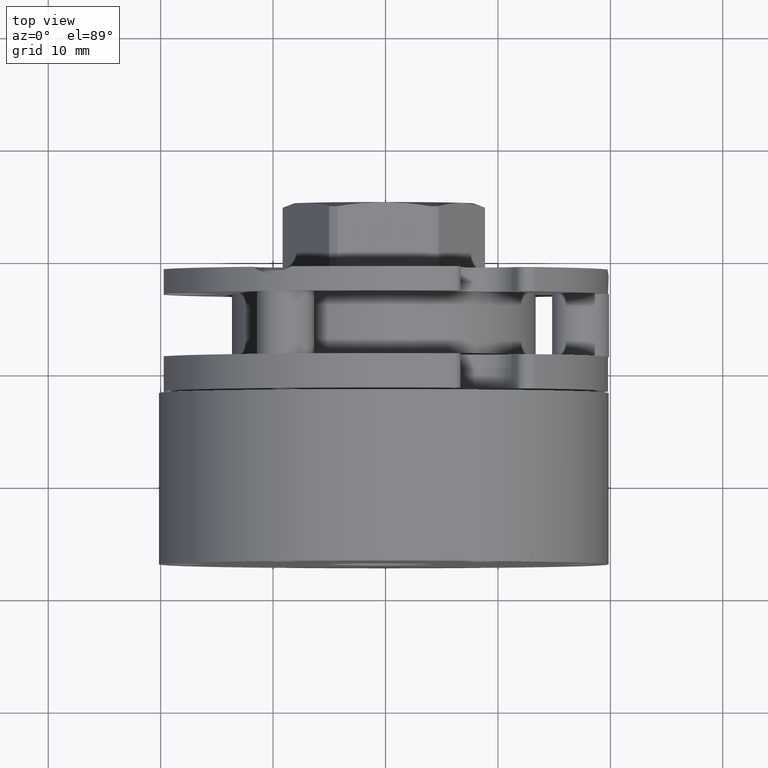
[diagram: clean part render]
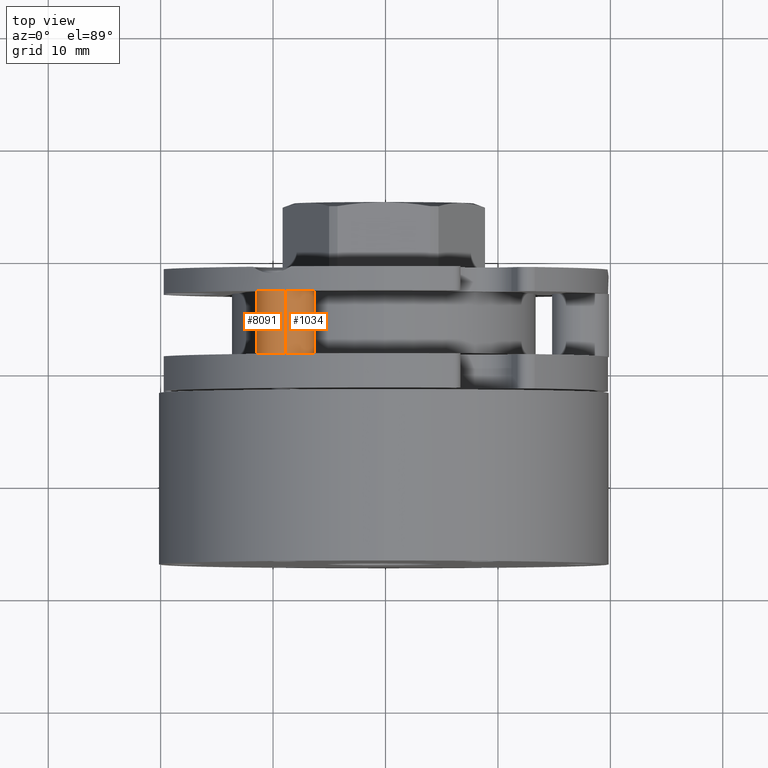
[diagram: same view with one multi-face feature highlighted, each face labeled with its STEP entity id]
A machine part, top view. The highlighted faces form ONE feature: a constant-radius fillet chain: 2 tangent blend faces with common blend radius 2.55 mm. The faces share edges in the B-rep.
Their STEP definitions:
[1] entity #1034 (Cylinder):
#133 = DIRECTION ( 'NONE',  ( -1.963197694344649898E-17, -1.000000000000000000, -6.123233995736775897E-17 ) ) ;
#170 = CARTESIAN_POINT ( 'NONE',  ( -8.898990157379978783, -63.08216099891336626, 18.00378232518351496 ) ) ;
#338 = AXIS2_PLACEMENT_3D ( 'NONE', #4889, #5484, #1870 ) ;
#381 = DIRECTION ( 'NONE',  ( -1.963197694344649898E-17, -1.000000000000000000, -6.123233995736775897E-17 ) ) ;
#670 = ORIENTED_EDGE ( 'NONE', *, *, #3724, .T. ) ;
#1011 = VECTOR ( 'NONE', #133, 1000.000000000000000 ) ;
#1034 = ADVANCED_FACE ( 'NONE', ( #8065 ), #4777, .T. ) ;
#1094 = VERTEX_POINT ( 'NONE', #8035 ) ;
#1208 = AXIS2_PLACEMENT_3D ( 'NONE', #2734, #7824, #2040 ) ;
#1434 = VERTEX_POINT ( 'NONE', #170 ) ;
#1870 = DIRECTION ( 'NONE',  ( 0.0000000000000000000, 0.0000000000000000000, -1.000000000000000000 ) ) ;
#2040 = DIRECTION ( 'NONE',  ( 0.0000000000000000000, 0.0000000000000000000, -1.000000000000000000 ) ) ;
#2273 = DIRECTION ( 'NONE',  ( -1.963197694344649898E-17, -1.000000000000000000, -6.123233995736775897E-17 ) ) ;
#2415 = EDGE_CURVE ( 'NONE', #7970, #1434, #8180, .T. ) ;
#2610 = DIRECTION ( 'NONE',  ( 0.0000000000000000000, 0.0000000000000000000, -1.000000000000000000 ) ) ;
#2734 = CARTESIAN_POINT ( 'NONE',  ( -8.898990157379978783, -68.68216099891338899, 15.45378232518351247 ) ) ;
#2799 = CARTESIAN_POINT ( 'NONE',  ( -8.898990157379978783, -68.68216099891338899, 18.00378232518351496 ) ) ;
#2912 = ORIENTED_EDGE ( 'NONE', *, *, #2415, .T. ) ;
#3724 = EDGE_CURVE ( 'NONE', #1434, #6680, #8422, .T. ) ;
#4070 = LINE ( 'NONE', #6004, #1011 ) ;
#4095 = ORIENTED_EDGE ( 'NONE', *, *, #6930, .F. ) ;
#4398 = CARTESIAN_POINT ( 'NONE',  ( -8.898990157379978783, -55.86967183081057442, 18.00378232518351496 ) ) ;
#4474 = EDGE_LOOP ( 'NONE', ( #2912, #670, #7791, #4095 ) ) ;
#4493 = CIRCLE ( 'NONE', #1208, 2.550000000000000266 ) ;
#4727 = CARTESIAN_POINT ( 'NONE',  ( -8.898990157379978783, -55.86967183081057442, 15.45378232518351247 ) ) ;
#4777 = CYLINDRICAL_SURFACE ( 'NONE', #6272, 2.550000000000000266 ) ;
#4889 = CARTESIAN_POINT ( 'NONE',  ( -8.898990157379978783, -63.08216099891336626, 15.45378232518351247 ) ) ;
#4934 = VECTOR ( 'NONE', #2273, 1000.000000000000000 ) ;
#5484 = DIRECTION ( 'NONE',  ( -1.963197694344649898E-17, -1.000000000000000000, -6.123233995736775897E-17 ) ) ;
#6004 = CARTESIAN_POINT ( 'NONE',  ( -8.898990157379978783, -55.86967183081057442, 12.90378232518351354 ) ) ;
#6272 = AXIS2_PLACEMENT_3D ( 'NONE', #4727, #381, #2610 ) ;
#6399 = CARTESIAN_POINT ( 'NONE',  ( -8.898990157379978783, -63.08216099891336626, 12.90378232518351354 ) ) ;
#6680 = VERTEX_POINT ( 'NONE', #2799 ) ;
#6930 = EDGE_CURVE ( 'NONE', #7970, #1094, #4070, .T. ) ;
#7791 = ORIENTED_EDGE ( 'NONE', *, *, #8915, .T. ) ;
#7824 = DIRECTION ( 'NONE',  ( 1.963197694344649898E-17, 1.000000000000000000, 6.123233995736775897E-17 ) ) ;
#7970 = VERTEX_POINT ( 'NONE', #6399 ) ;
#8035 = CARTESIAN_POINT ( 'NONE',  ( -8.898990157379978783, -68.68216099891338899, 12.90378232518351354 ) ) ;
#8065 = FACE_OUTER_BOUND ( 'NONE', #4474, .T. ) ;
#8180 = CIRCLE ( 'NONE', #338, 2.550000000000000266 ) ;
#8422 = LINE ( 'NONE', #4398, #4934 ) ;
#8915 = EDGE_CURVE ( 'NONE', #6680, #1094, #4493, .T. ) ;
[2] entity #8091 (Cylinder):
#133 = DIRECTION ( 'NONE',  ( -1.963197694344649898E-17, -1.000000000000000000, -6.123233995736775897E-17 ) ) ;
#170 = CARTESIAN_POINT ( 'NONE',  ( -8.898990157379978783, -63.08216099891336626, 18.00378232518351496 ) ) ;
#305 = CYLINDRICAL_SURFACE ( 'NONE', #6642, 2.550000000000000266 ) ;
#768 = CARTESIAN_POINT ( 'NONE',  ( -8.898990157379978783, -68.68216099891338899, 15.45378232518351247 ) ) ;
#878 = CARTESIAN_POINT ( 'NONE',  ( -8.898990157379978783, -55.86967183081057442, 15.45378232518351247 ) ) ;
#1011 = VECTOR ( 'NONE', #133, 1000.000000000000000 ) ;
#1094 = VERTEX_POINT ( 'NONE', #8035 ) ;
#1434 = VERTEX_POINT ( 'NONE', #170 ) ;
#2273 = DIRECTION ( 'NONE',  ( -1.963197694344649898E-17, -1.000000000000000000, -6.123233995736775897E-17 ) ) ;
#2799 = CARTESIAN_POINT ( 'NONE',  ( -8.898990157379978783, -68.68216099891338899, 18.00378232518351496 ) ) ;
#3178 = AXIS2_PLACEMENT_3D ( 'NONE', #4971, #3541, #9315 ) ;
#3333 = ORIENTED_EDGE ( 'NONE', *, *, #7339, .T. ) ;
#3541 = DIRECTION ( 'NONE',  ( -1.963197694344649898E-17, -1.000000000000000000, -6.123233995736775897E-17 ) ) ;
#3724 = EDGE_CURVE ( 'NONE', #1434, #6680, #8422, .T. ) ;
#3848 = CIRCLE ( 'NONE', #4819, 2.550000000000000266 ) ;
#4070 = LINE ( 'NONE', #6004, #1011 ) ;
#4090 = ORIENTED_EDGE ( 'NONE', *, *, #6769, .T. ) ;
#4398 = CARTESIAN_POINT ( 'NONE',  ( -8.898990157379978783, -55.86967183081057442, 18.00378232518351496 ) ) ;
#4819 = AXIS2_PLACEMENT_3D ( 'NONE', #768, #5849, #5781 ) ;
#4844 = FACE_OUTER_BOUND ( 'NONE', #6347, .T. ) ;
#4934 = VECTOR ( 'NONE', #2273, 1000.000000000000000 ) ;
#4971 = CARTESIAN_POINT ( 'NONE',  ( -8.898990157379978783, -63.08216099891336626, 15.45378232518351247 ) ) ;
#5674 = ORIENTED_EDGE ( 'NONE', *, *, #6930, .T. ) ;
#5781 = DIRECTION ( 'NONE',  ( 0.0000000000000000000, 0.0000000000000000000, -1.000000000000000000 ) ) ;
#5849 = DIRECTION ( 'NONE',  ( 1.963197694344649898E-17, 1.000000000000000000, 6.123233995736775897E-17 ) ) ;
#6004 = CARTESIAN_POINT ( 'NONE',  ( -8.898990157379978783, -55.86967183081057442, 12.90378232518351354 ) ) ;
#6347 = EDGE_LOOP ( 'NONE', ( #6645, #3333, #5674, #4090 ) ) ;
#6399 = CARTESIAN_POINT ( 'NONE',  ( -8.898990157379978783, -63.08216099891336626, 12.90378232518351354 ) ) ;
#6642 = AXIS2_PLACEMENT_3D ( 'NONE', #878, #7398, #7308 ) ;
#6645 = ORIENTED_EDGE ( 'NONE', *, *, #3724, .F. ) ;
#6680 = VERTEX_POINT ( 'NONE', #2799 ) ;
#6769 = EDGE_CURVE ( 'NONE', #1094, #6680, #3848, .T. ) ;
#6930 = EDGE_CURVE ( 'NONE', #7970, #1094, #4070, .T. ) ;
#7194 = CIRCLE ( 'NONE', #3178, 2.550000000000000266 ) ;
#7308 = DIRECTION ( 'NONE',  ( 0.0000000000000000000, 0.0000000000000000000, -1.000000000000000000 ) ) ;
#7339 = EDGE_CURVE ( 'NONE', #1434, #7970, #7194, .T. ) ;
#7398 = DIRECTION ( 'NONE',  ( -1.963197694344649898E-17, -1.000000000000000000, -6.123233995736775897E-17 ) ) ;
#7970 = VERTEX_POINT ( 'NONE', #6399 ) ;
#8035 = CARTESIAN_POINT ( 'NONE',  ( -8.898990157379978783, -68.68216099891338899, 12.90378232518351354 ) ) ;
#8091 = ADVANCED_FACE ( 'NONE', ( #4844 ), #305, .T. ) ;
#8422 = LINE ( 'NONE', #4398, #4934 ) ;
#9315 = DIRECTION ( 'NONE',  ( 0.0000000000000000000, 0.0000000000000000000, -1.000000000000000000 ) ) ;